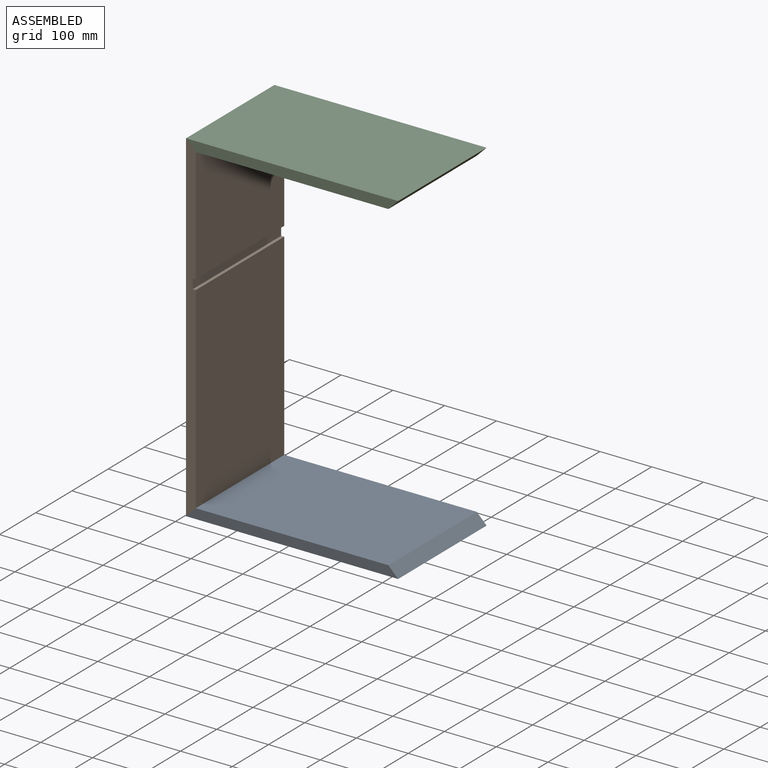
[diagram: assembled view]
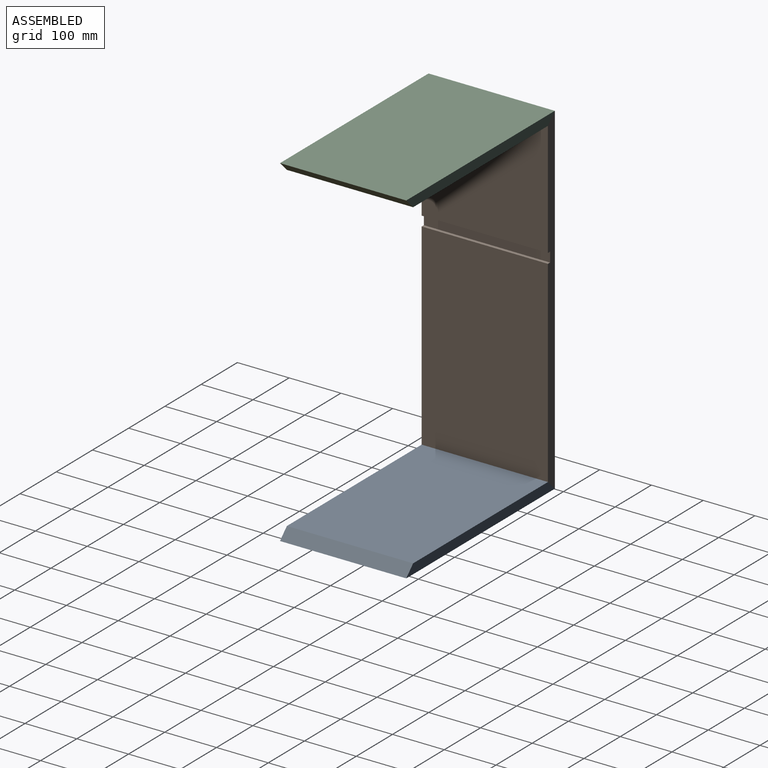
[diagram: assembled view, second angle]
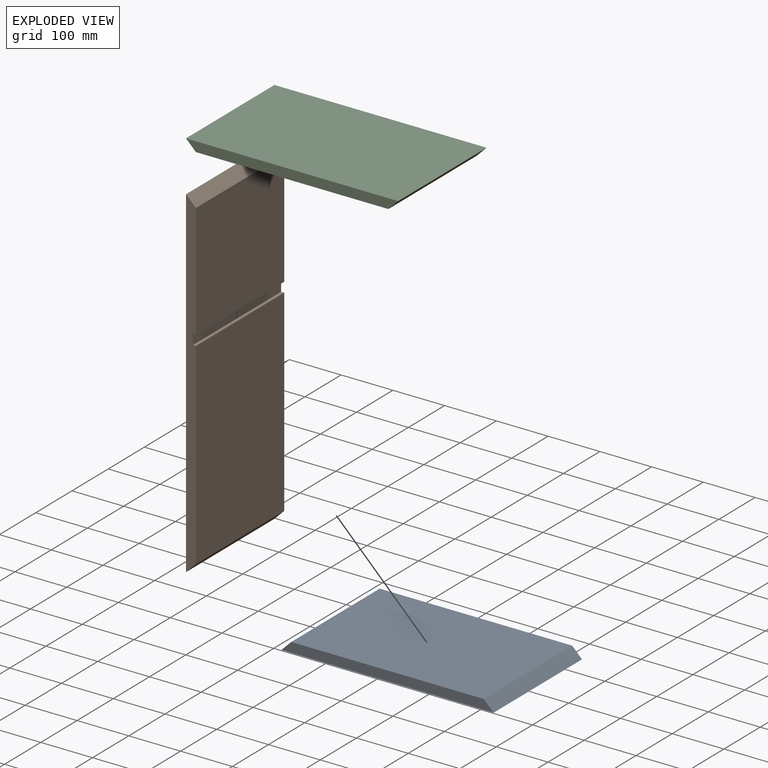
[diagram: exploded view]
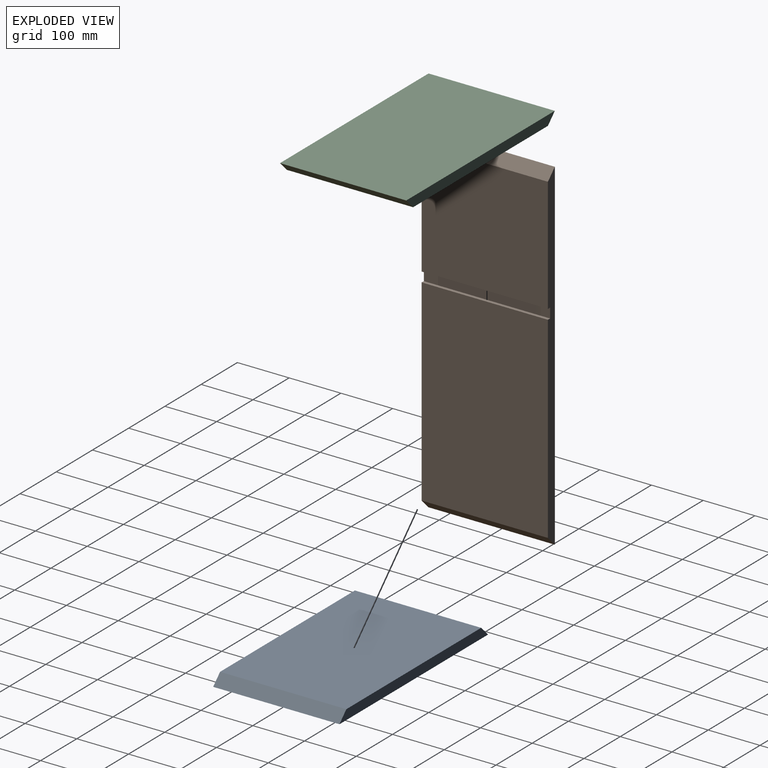
[diagram: exploded view, second angle]
ASSEMBLY  parts=3 mates=2
PART A: 6 faces, bbox 410x244x19 mm
  f0: plane 410x19mm, normal (0,1,0), area 7429mm2, adj f2,f3,f4,f5
  f1: plane 410x19mm, normal (0,-1,0), area 7429mm2, adj f2,f3,f4,f5
  f2: plane 372x244mm, normal (0,0,1), area 90768mm2, adj f0,f1,f4,f5
  f3: plane 410x244mm, normal (0,0,-1), area 100040mm2, adj f0,f1,f4,f5
  f4: plane 244x19mm, normal (0.71,0,0.71), area 6556.3mm2, adj f0,f1,f2,f3
  f5: plane 244x19mm, normal (-0.71,0,0.71), area 6556.3mm2, adj f0,f1,f2,f3
PART B: 10 faces, bbox 19x244x660 mm
  f0: plane 244x222mm, normal (1,0,0), area 54168mm2, adj f1,f2,f6,f8
  f1: plane 660x19mm, normal (0,-1,0), area 12065mm2, adj f0,f3,f4,f5,f6,f7,f8,f9
  f2: plane 660x19mm, normal (0,1,0), area 12065mm2, adj f0,f3,f4,f5,f6,f7,f8,f9
  f3: plane 381x244mm, normal (1,0,0), area 92964mm2, adj f1,f2,f5,f7
  f4: plane 660x244mm, normal (-1,0,0), area 161040mm2, adj f1,f2,f5,f6
  f5: plane 244x19mm, normal (0.71,0,-0.71), area 6556.3mm2, adj f1,f2,f3,f4
  f6: plane 244x19mm, normal (0.71,0,0.71), area 6556.3mm2, adj f0,f1,f2,f4
  f7: plane 244x6mm, normal (0,0,1), area 1464mm2, adj f1,f2,f3,f9
  f8: plane 244x6mm, normal (0,0,-1), area 1464mm2, adj f0,f1,f2,f9
  f9: plane 244x19mm, normal (1,0,0), area 4636mm2, adj f1,f2,f7,f8
PART C: same geometry as A
PLACE A t=(-26.05,-180.98,-499.51)mm
PLACE B t=(-155.8,-58.42,35.41)mm fixed
PLACE C rot(axis=(0,-1,0),180deg) t=(124.44,-180.98,160.49)mm
MATE planar C.f4 <-> B.f6  axis (-0.71,0,-0.71) through (-155.8,-197.47,160.49)mm
MATE planar A.f5 <-> B.f5  axis (-0.71,0,0.71) through (-136.8,-197.47,-480.51)mm
